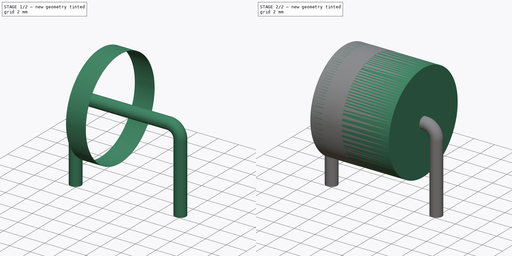
[diagram: build sequence overview — one tinted view per stage of 2, left to right]
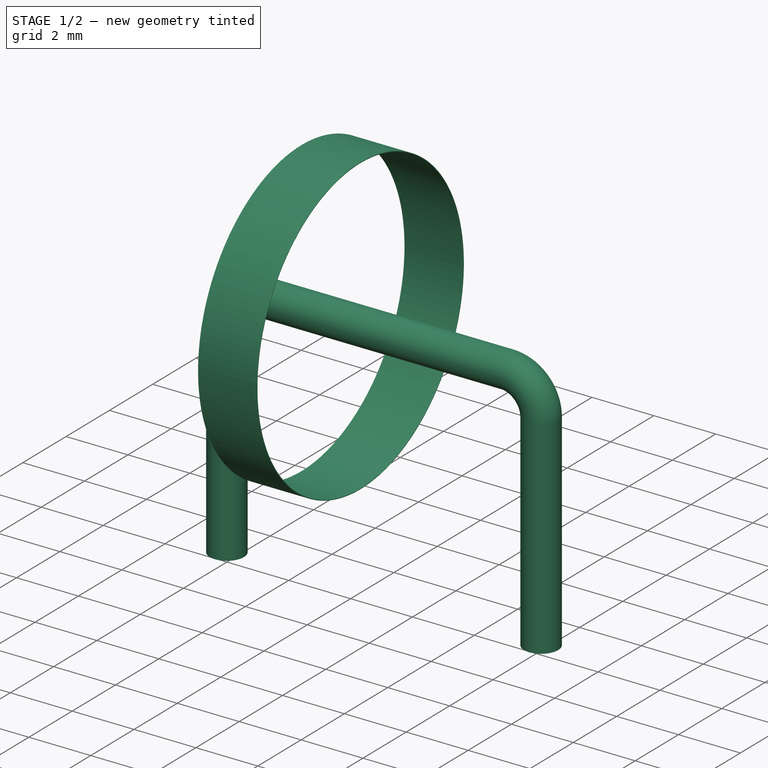
[diagram: stage 1 of 2 — iso view after this stage's code; geometry added in this stage tinted green]
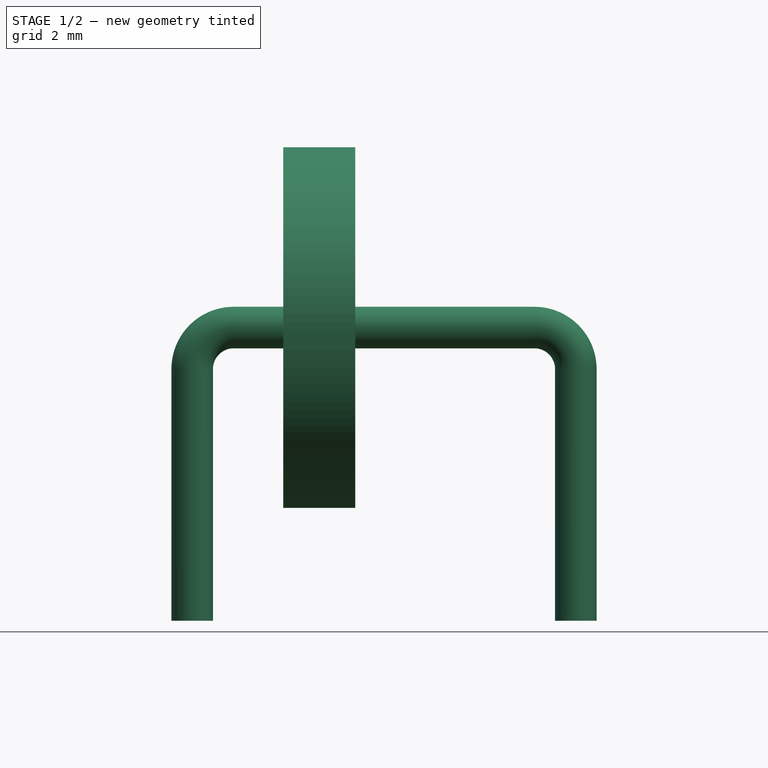
[diagram: stage 1 of 2 — front view after this stage's code; geometry added in this stage tinted green]
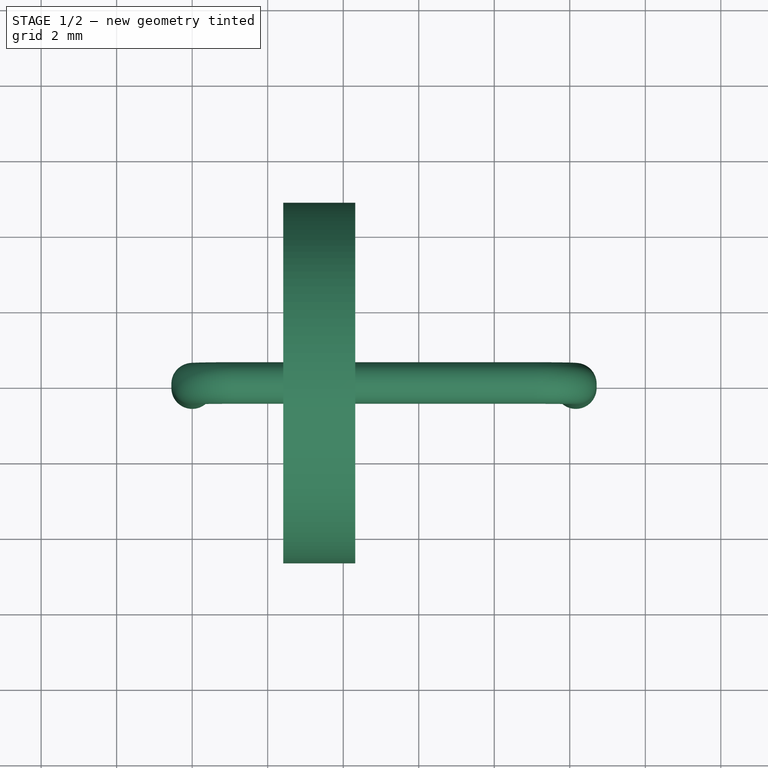
[diagram: stage 1 of 2 — top view after this stage's code; geometry added in this stage tinted green]
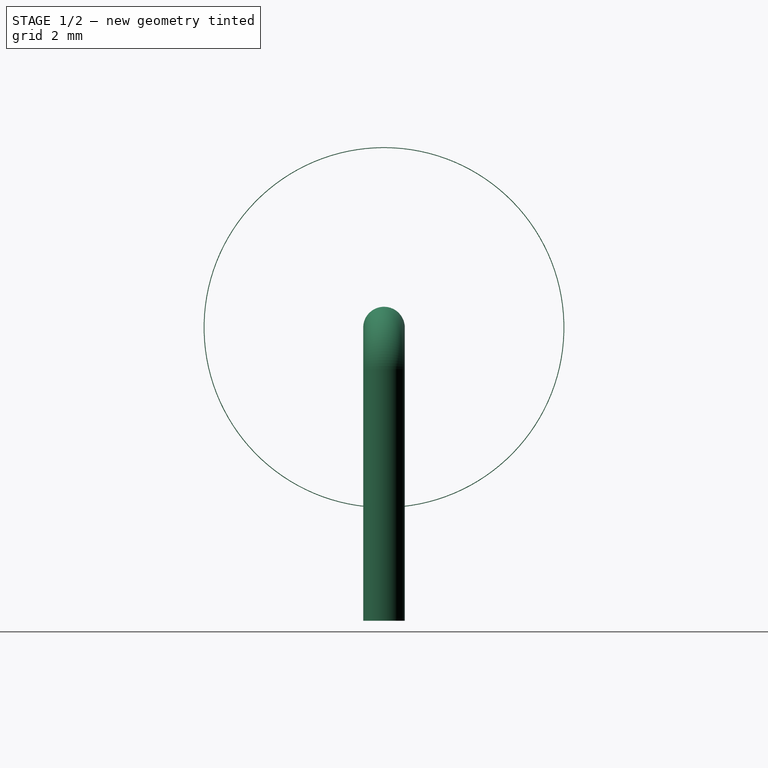
[diagram: stage 1 of 2 — right view after this stage's code; geometry added in this stage tinted green]
FCSTD DOCUMENT  (FreeCAD 0.16R6703 (Git))
Label: D_5KP_P10.16mm_Horizontal
License: All rights reserved
LicenseURL: http://en.wikipedia.org/wiki/All_rights_reserved
objects: Sketcher::SketchObject×4, PartDesign::Revolution×2, Spreadsheet::Sheet×1, Part::Sweep×1
note: 9 computed .brp shape members not serialized (recipe doc carries the construction recipe); baked Part::Feature solids carry a one-line shape summary decoded from their .brp

FEATURE [Sketcher::SketchObject] Sketch003
  Placement = pos=(0,0,0) rot=(1,0,0;1.5708rad)
  expr: Constraints[12] = Spreadsheet.L * 0.25
  expr: Constraints[13] = Spreadsheet.d / 2 - 0.01
  expr: Constraints[14] = (Spreadsheet.RM - Spreadsheet.L) / 2 + 0.15 * Spreadsheet.L
  expr: Constraints[2] = Spreadsheet.d / 2 + 0.5
  sketch-geometry (5):
    g0: LineSegment [constr] StartX=0 StartY=5.265 StartZ=0 EndX=4.17342 EndY=5.265 EndZ=0
    g1: LineSegment StartX=2.413 StartY=10.04 StartZ=0 EndX=4.318 EndY=10.04 EndZ=0
    g2: LineSegment StartX=4.318 StartY=10.04 StartZ=0 EndX=4.318 EndY=10.02 EndZ=0
    g3: LineSegment StartX=4.318 StartY=10.02 StartZ=0 EndX=2.413 EndY=10.02 EndZ=0
    g4: LineSegment StartX=2.413 StartY=10.02 StartZ=0 EndX=2.413 EndY=10.04 EndZ=0
  constraints (15):
    c: PointOnObject(g0,g-2)
    c: Horizontal(g0)
    c: DistanceY(g-1,g0) = 5.265
    c: Coincident(g1,g2)
    c: Coincident(g2,g3)
    c: Coincident(g3,g4)
    c: Coincident(g4,g1)
    c: Horizontal(g1)
    c: Horizontal(g3)
    c: Vertical(g2)
    c: Vertical(g4)
    c: DistanceY(g2,g1) = 0.02
    c: DistanceX(g1,g1) = 1.905
    c: DistanceY(g0,g2) = 4.755
    c: DistanceX(g0,g3) = 2.413
FEATURE [PartDesign::Revolution] Revolution001
  Angle = 360
  Axis = (4.17342,0,0)
  Base = (0,0,5.265)
  Placement = pos=(0,0,0) rot=(1,0,0;1.5708rad)
  ReferenceAxis = -> Sketch003 [Axis0]
  Sketch = -> Sketch003
FEATURE [Sketcher::SketchObject] Sketch
  Placement = pos=(0,0,-2) rot=(0,0,1;0rad)
  expr: Constraints[1] = Spreadsheet.d_wire / 2
  sketch-geometry (1):
    g0: Circle CenterX=0 CenterY=0 CenterZ=0 NormalX=0 NormalY=0 NormalZ=1 Radius=0.55
  constraints (2):
    c: Coincident(g0,g-1)
    c: Radius(g0) = 0.55
FEATURE [Spreadsheet::Sheet] Spreadsheet
  cells = A1=L; B1(L)=7.62; A2=d; B2(d)=9.529999999999999; C2(d2)=0; A3=RM; B3(RM)=10.16; C3(shuntPinsRM)=0; A4=d_wire; B4(d_wire)=1.1
FEATURE [Part::Sweep] Sweep
  Frenet = false
  Sections = -> [Sketch]
  Solid = true
  Spine = -> Sketch001 [Edge1,Edge2,Edge3,Edge4,Edge5]
  Transition = 1
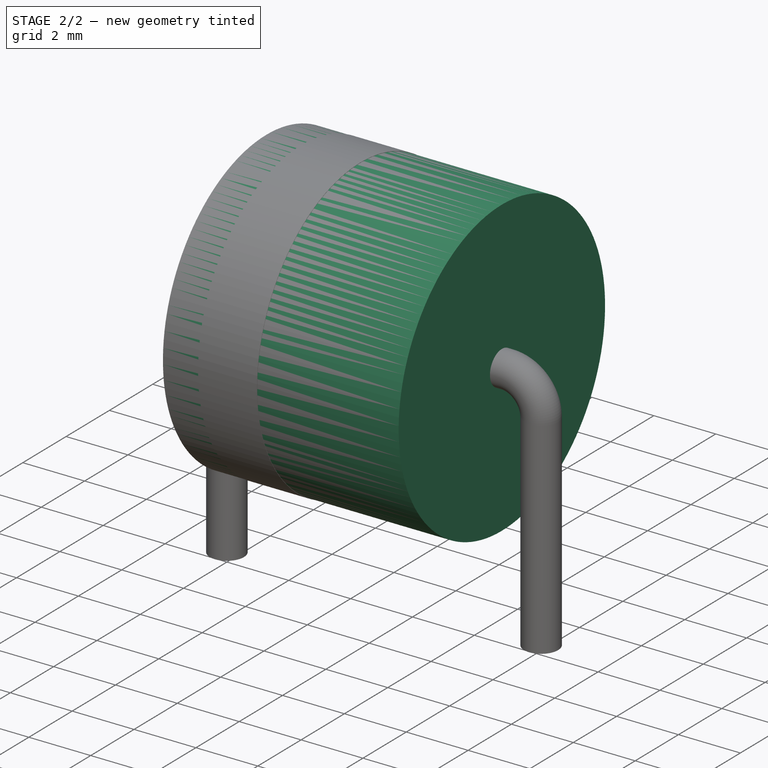
[diagram: stage 2 of 2 — iso view after this stage's code; geometry added in this stage tinted green]
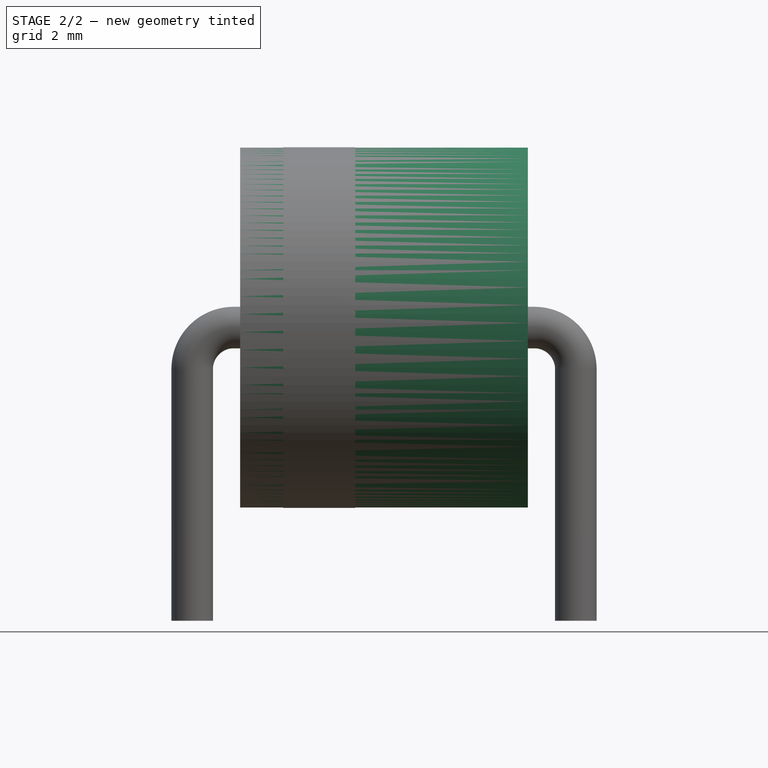
[diagram: stage 2 of 2 — front view after this stage's code; geometry added in this stage tinted green]
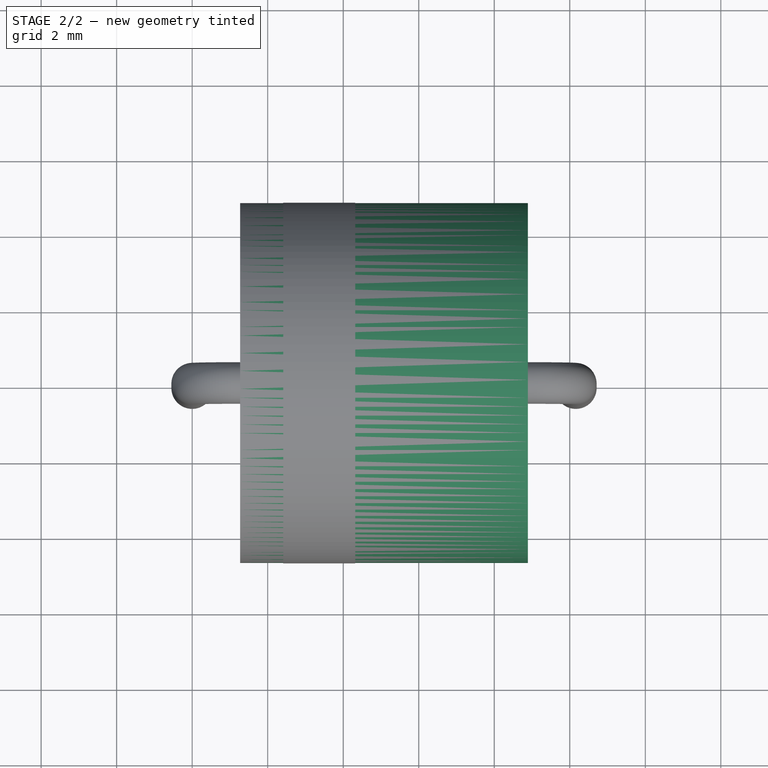
[diagram: stage 2 of 2 — top view after this stage's code; geometry added in this stage tinted green]
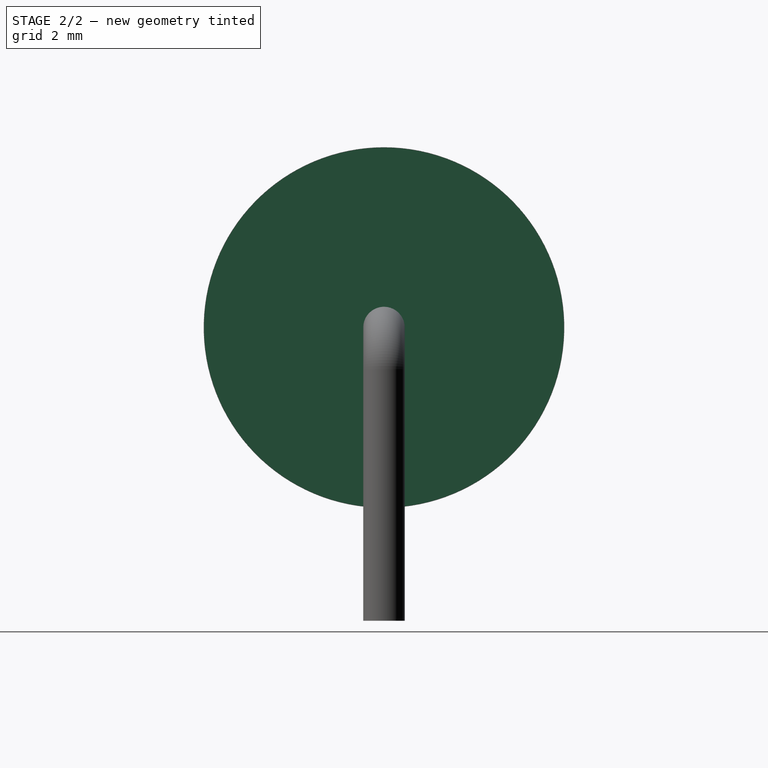
[diagram: stage 2 of 2 — right view after this stage's code; geometry added in this stage tinted green]
FEATURE [Sketcher::SketchObject] Sketch001
  Placement = pos=(0,0,0) rot=(1,0,0;1.5708rad)
  expr: Constraints[10] = Spreadsheet.d / 2 + 0.5
  expr: Constraints[3] = Spreadsheet.RM
  expr: Constraints[14] = Spreadsheet.d_wire
  expr: Constraints[13] = Spreadsheet.d_wire
  sketch-geometry (5):
    g0: LineSegment StartX=1.1 StartY=5.265 StartZ=0 EndX=9.06 EndY=5.265 EndZ=0
    g1: ArcOfCircle CenterX=9.06 CenterY=4.165 CenterZ=0 NormalX=0 NormalY=0 NormalZ=1 Radius=1.1 StartAngle=0 EndAngle=1.5708
    g2: ArcOfCircle CenterX=1.1 CenterY=4.165 CenterZ=0 NormalX=0 NormalY=0 NormalZ=1 Radius=1.1 StartAngle=1.5708 EndAngle=3.14159
    g3: LineSegment StartX=0 StartY=4.165 StartZ=0 EndX=0 EndY=-2.5 EndZ=0
    g4: LineSegment StartX=10.16 StartY=4.165 StartZ=0 EndX=10.16 EndY=-2.5 EndZ=0
  constraints (18):
    c: Horizontal(g0)
    c: Coincident(g1,g0)
    c: Coincident(g2,g0)
    c: DistanceX(g2,g1) = 10.16
    c: Vertical(g3)
    c: Vertical(g4)
    c: PointOnObject(g-1,g3)
    c: DistanceY(g3,g-1) = 2.5
    c: DistanceY(g3,g4) = 0
    c: Coincident(g2,g3)
    c: DistanceY(g-1,g0) = 5.265
    c: DistanceY(g2,g2) = 0
    c: DistanceY(g1,g1) = 0
    c: DistanceX(g2,g0) = 1.1
    c: DistanceX(g0,g1) = 1.1
    c: Coincident(g4,g1)
    c: DistanceX(g0,g2) = 0
    c: DistanceX(g1,g0) = 0
FEATURE [Sketcher::SketchObject] Sketch002  label="Axis0"
  Placement = pos=(0,0,0) rot=(1,0,0;1.5708rad)
  expr: Constraints[1] = Spreadsheet.L
  expr: Constraints[8] = Spreadsheet.d / 2 + 0.5
  expr: Constraints[7] = (Spreadsheet.RM - Spreadsheet.L) / 2
  expr: Constraints[11] = Spreadsheet.d / 2
  sketch-geometry (7):
    g0: LineSegment [constr] StartX=1.27 StartY=5.265 StartZ=0 EndX=8.89 EndY=5.265 EndZ=0
    g1: LineSegment [constr] StartX=1.27 StartY=5.265 StartZ=0 EndX=1.27 EndY=0 EndZ=0
    g2: LineSegment [constr] StartX=1.27 StartY=0 StartZ=0 EndX=0 EndY=0 EndZ=0
    g3: LineSegment StartX=1.27 StartY=5.265 StartZ=0 EndX=8.89 EndY=5.265 EndZ=0
    g4: LineSegment StartX=1.27 StartY=5.265 StartZ=0 EndX=1.27 EndY=10.03 EndZ=0
    g5: LineSegment StartX=8.89 StartY=5.265 StartZ=0 EndX=8.89 EndY=10.03 EndZ=0
    g6: LineSegment StartX=1.27 StartY=10.03 StartZ=0 EndX=8.89 EndY=10.03 EndZ=0
  constraints (19):
    c: Horizontal(g0)
    c: DistanceX(g0,g0) = 7.62
    c: Coincident(g1,g0)
    c: Vertical(g1)
    c: Coincident(g2,g1)
    c: Coincident(g2,g-1)
    c: Horizontal(g2)
    c: DistanceX(g2,g2) = 1.27
    c: DistanceY(g1,g1) = 5.265
    c: Coincident(g3,g0)
    c: Vertical(g4)
    c: DistanceY(g4,g4) = 4.765
    c: Coincident(g4,g0)
    c: Coincident(g5,g0)
    c: Vertical(g5)
    c: Equal(g5,g4)
    c: Coincident(g3,g0)
    c: Coincident(g6,g4)
    c: Coincident(g6,g5)
FEATURE [PartDesign::Revolution] Revolution
  Angle = 360
  Axis = (7.62,0,0)
  Base = (1.27,0,5.265)
  Placement = pos=(0,0,0) rot=(1,0,0;1.5708rad)
  ReferenceAxis = -> Sketch002 [Axis0]
  Sketch = -> Sketch002
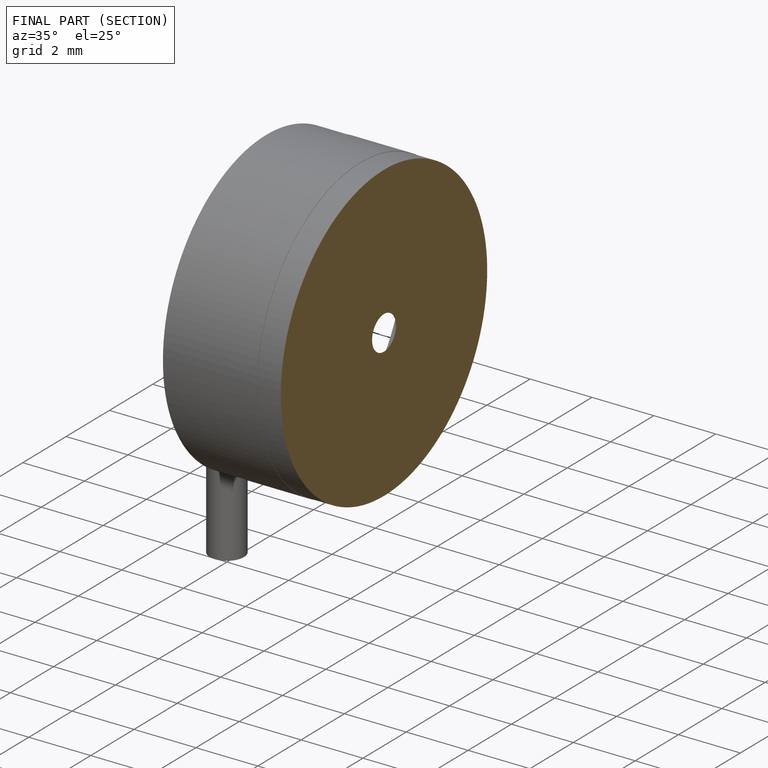
[diagram: finished part — half-section view (interior)]
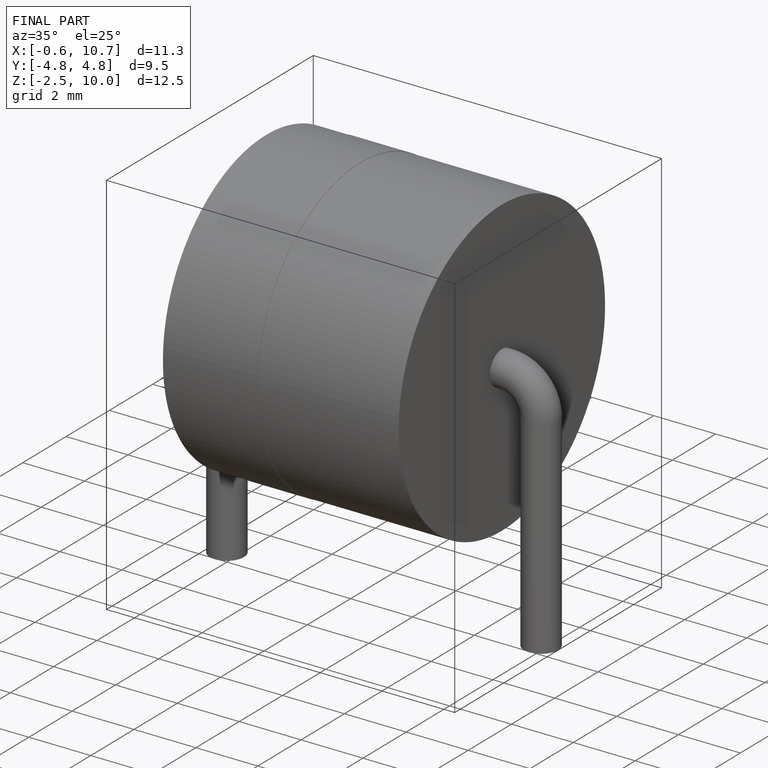
[diagram: finished part — iso view with bounding-box wireframe]
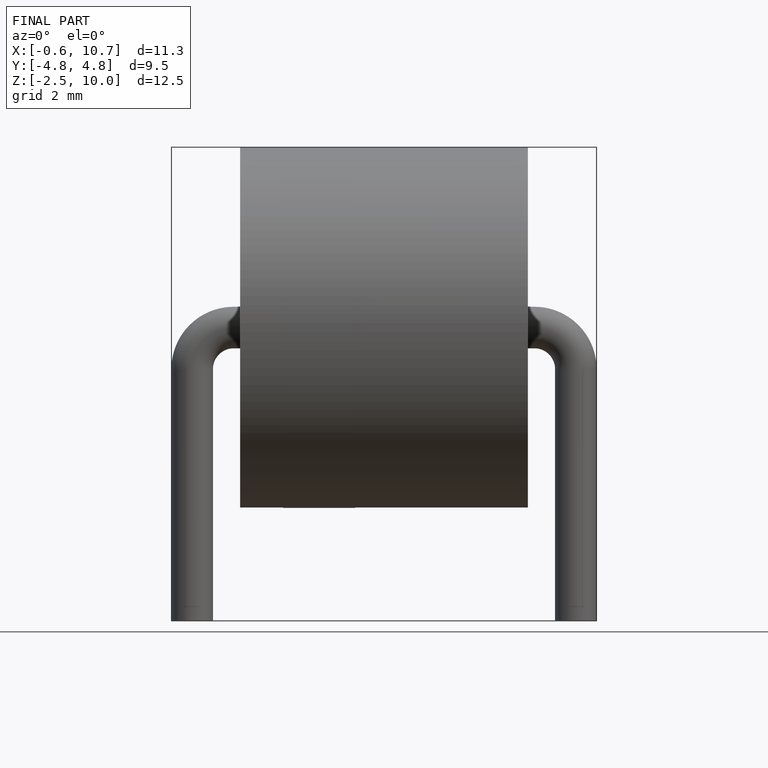
[diagram: finished part — front view with bounding-box wireframe]
